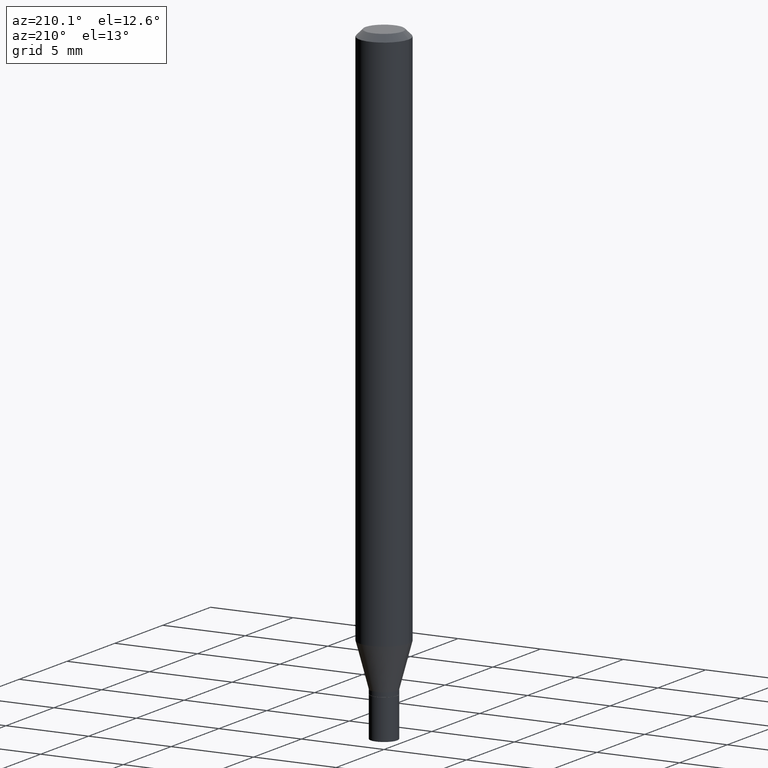
[diagram: clean part render]
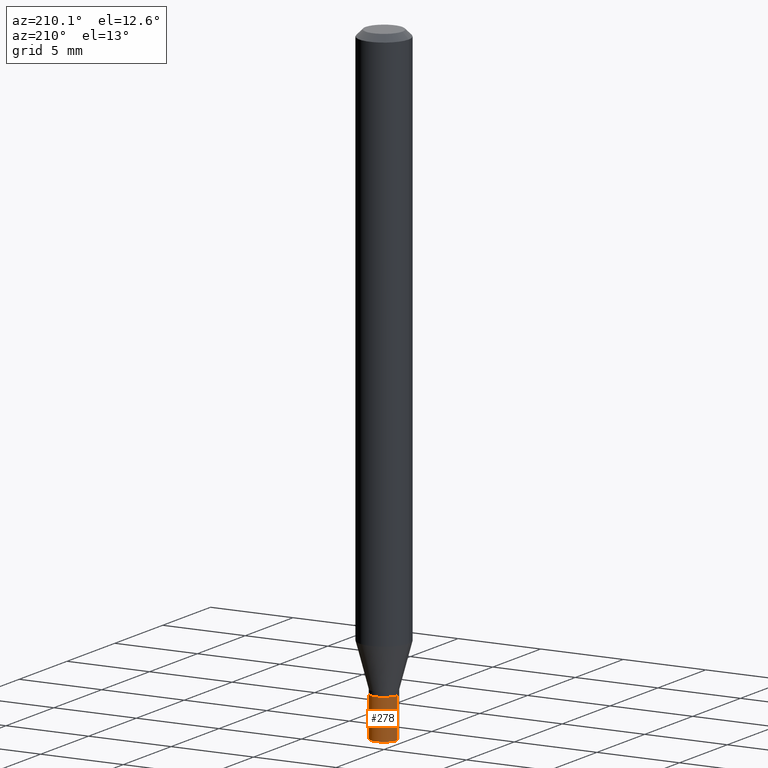
[diagram: same view with one face highlighted and labeled with its STEP entity id]
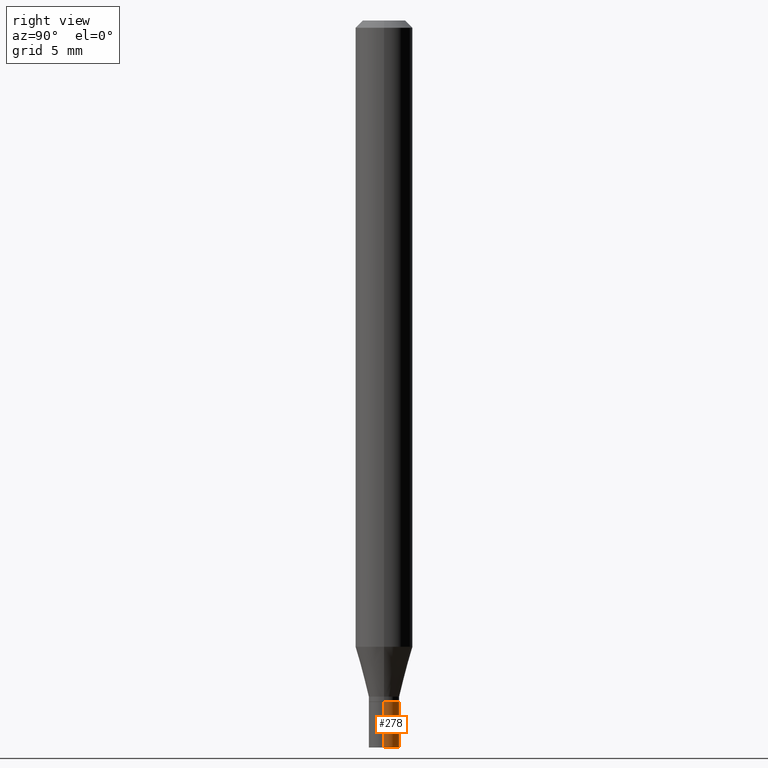
[diagram: same view with one face highlighted and labeled with its STEP entity id]
A machine part, auxiliary view. The second image highlights one B-rep face of the part: STEP entity #278.
A second angle (right view) of the same face is appended — the face is thin or edge-on in the first view.
In plain terms, the highlighted cylindrical surface (edge-blend (fillet) strip) has radius 0.8001 mm, axis along (-0, 0, 1).
Its self-contained STEP definition (entity closure, byte-faithful):
#17 = CARTESIAN_POINT ( 'NONE',  ( 0.03150000000000000022, -2.199633243471173876E-16, 1.535995684375719887E-30 ) ) ;
#28 = DIRECTION ( 'NONE',  ( 1.000000000000000000, -6.982962677686255667E-15, 0.000000000000000000 ) ) ;
#35 = AXIS2_PLACEMENT_3D ( 'NONE', #379, #207, #28 ) ;
#42 = CARTESIAN_POINT ( 'NONE',  ( 3.668203209277704895E-29, -5.237222008264718177E-15, -1.500000000000000222 ) ) ;
#46 = ORIENTED_EDGE ( 'NONE', *, *, #235, .T. ) ;
#52 = AXIS2_PLACEMENT_3D ( 'NONE', #42, #113, #228 ) ;
#54 = ORIENTED_EDGE ( 'NONE', *, *, #329, .F. ) ;
#78 = VECTOR ( 'NONE', #273, 39.37007874015748143 ) ;
#87 = VECTOR ( 'NONE', #463, 39.37007874015748143 ) ;
#89 = VERTEX_POINT ( 'NONE', #210 ) ;
#109 = CARTESIAN_POINT ( 'NONE',  ( -0.03150000000000000022, -4.848428553239948021E-15, -1.405499999999999972 ) ) ;
#113 = DIRECTION ( 'NONE',  ( -2.445468806185136597E-29, 3.491481338843145583E-15, 1.000000000000000000 ) ) ;
#155 = VERTEX_POINT ( 'NONE', #423 ) ;
#190 = CIRCLE ( 'NONE', #35, 0.03150000000000000022 ) ;
#192 = EDGE_CURVE ( 'NONE', #89, #234, #223, .T. ) ;
#194 = ORIENTED_EDGE ( 'NONE', *, *, #192, .T. ) ;
#207 = DIRECTION ( 'NONE',  ( -2.445468806185136597E-29, 3.491481338843145583E-15, 1.000000000000000000 ) ) ;
#210 = CARTESIAN_POINT ( 'NONE',  ( -0.03150000000000000022, -4.848428553239948021E-15, -1.500000000000000222 ) ) ;
#223 = LINE ( 'NONE', #323, #87 ) ;
#226 = CYLINDRICAL_SURFACE ( 'NONE', #412, 0.03150000000000000022 ) ;
#227 = FACE_OUTER_BOUND ( 'NONE', #447, .T. ) ;
#228 = DIRECTION ( 'NONE',  ( 1.000000000000000000, -6.982962677686255667E-15, 0.000000000000000000 ) ) ;
#234 = VERTEX_POINT ( 'NONE', #109 ) ;
#235 = EDGE_CURVE ( 'NONE', #155, #89, #360, .T. ) ;
#273 = DIRECTION ( 'NONE',  ( -2.445468806185136877E-29, 3.491481338843145188E-15, 1.000000000000000000 ) ) ;
#277 = ORIENTED_EDGE ( 'NONE', *, *, #322, .F. ) ;
#278 = ADVANCED_FACE ( 'NONE', ( #227 ), #226, .T. ) ;
#305 = VERTEX_POINT ( 'NONE', #377 ) ;
#322 = EDGE_CURVE ( 'NONE', #305, #234, #190, .T. ) ;
#323 = CARTESIAN_POINT ( 'NONE',  ( -0.03150000000000000022, 2.238209617644315601E-16, -1.549464553430295327E-30 ) ) ;
#328 = DIRECTION ( 'NONE',  ( -2.445468806185136597E-29, 3.491481338843145583E-15, 1.000000000000000000 ) ) ;
#329 = EDGE_CURVE ( 'NONE', #155, #305, #454, .T. ) ;
#360 = CIRCLE ( 'NONE', #52, 0.03150000000000000022 ) ;
#363 = CARTESIAN_POINT ( 'NONE',  ( 0.000000000000000000, 0.000000000000000000, 0.000000000000000000 ) ) ;
#377 = CARTESIAN_POINT ( 'NONE',  ( 0.03150000000000000022, -5.127240346091158719E-15, -1.405499999999999972 ) ) ;
#379 = CARTESIAN_POINT ( 'NONE',  ( 3.437106407093210258E-29, -4.907277021744041380E-15, -1.405499999999999972 ) ) ;
#412 = AXIS2_PLACEMENT_3D ( 'NONE', #363, #328, #432 ) ;
#423 = CARTESIAN_POINT ( 'NONE',  ( 0.03150000000000000022, -5.457185332611835515E-15, -1.500000000000000222 ) ) ;
#432 = DIRECTION ( 'NONE',  ( 1.000000000000000000, -6.982962677686265922E-15, 4.876176775795936353E-29 ) ) ;
#447 = EDGE_LOOP ( 'NONE', ( #46, #194, #277, #54 ) ) ;
#454 = LINE ( 'NONE', #17, #78 ) ;
#463 = DIRECTION ( 'NONE',  ( -2.445468806185136877E-29, 3.491481338843145188E-15, 1.000000000000000000 ) ) ;